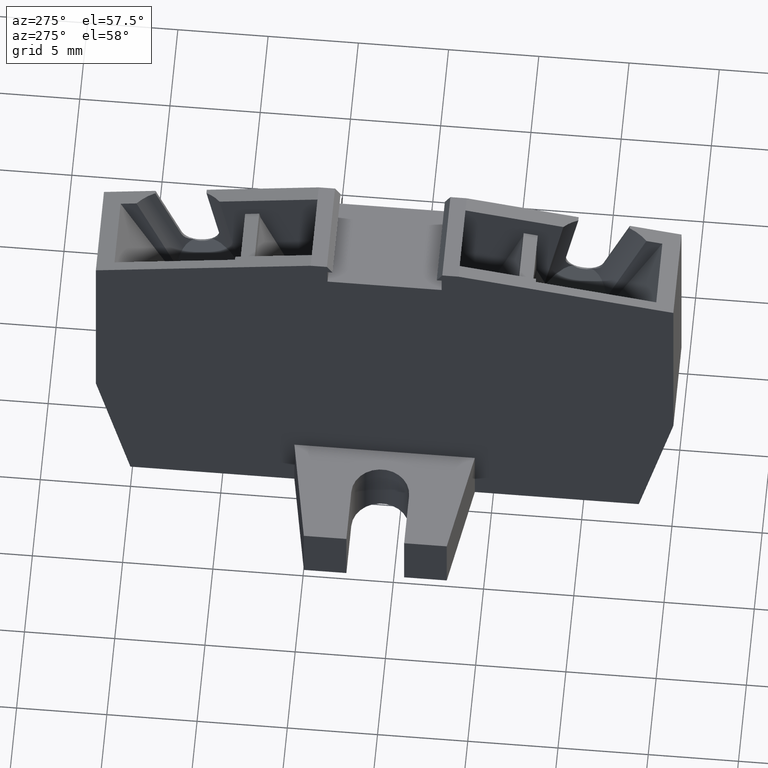
[diagram: clean part render]
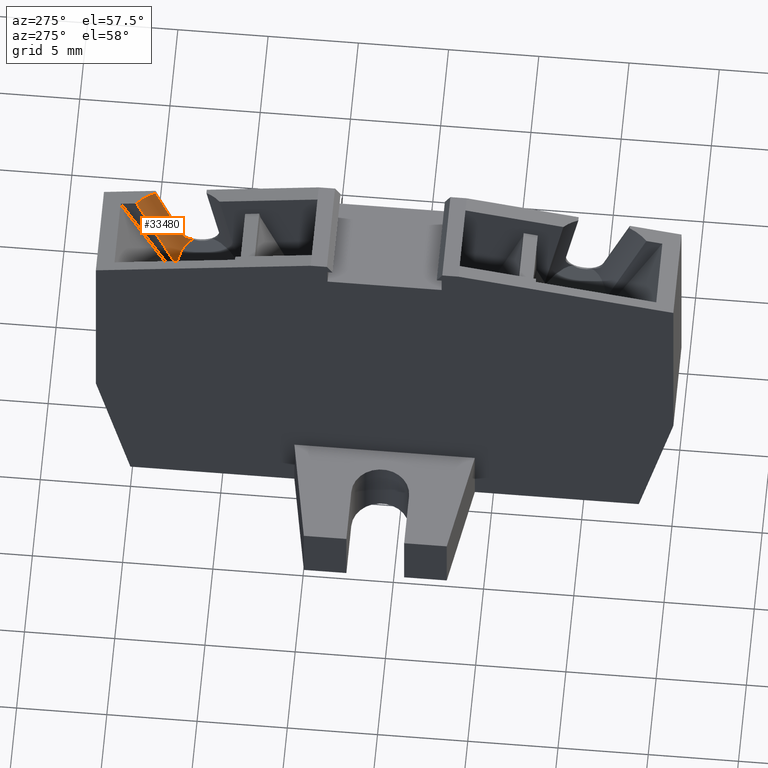
[diagram: same view with one face highlighted and labeled with its STEP entity id]
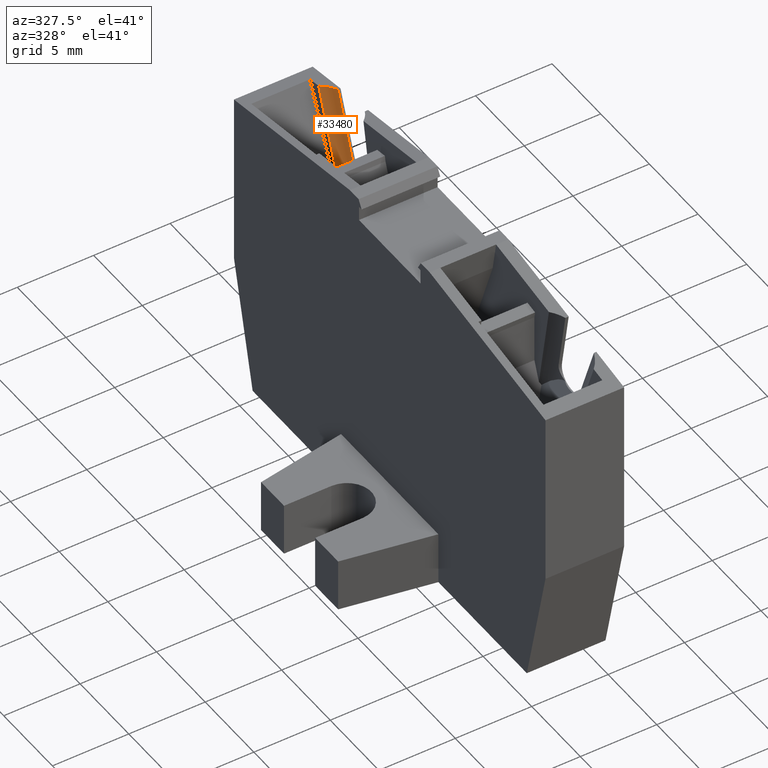
[diagram: same view with one face highlighted and labeled with its STEP entity id]
A machine part, auxiliary view. The second image highlights one B-rep face of the part: STEP entity #33480.
A second angle (auxiliary view) of the same face is appended — the face is thin or edge-on in the first view.
In plain terms, the highlighted cylindrical surface (partial cylindrical patch) has radius 2.6154 mm, axis along (-0, -0.342, -0.9397).
Its self-contained STEP definition (entity closure, byte-faithful):
#8330=CARTESIAN_POINT('',(-4.13156586621165,98.4064081332776,
55.2084248015004));
#8340=VERTEX_POINT('',#8330);
#8370=CARTESIAN_POINT('',(-4.51646609882573,99.2318293458242,
57.665222820032));
#8380=DIRECTION('',(0.906307787036646,0.422618261740707,
3.30958753668607E-15));
#8390=DIRECTION('',(-0.422618261740707,0.906307787036646,
1.41623349009389E-14));
#8400=AXIS2_PLACEMENT_3D('',#8370,#8380,#8390);
#8410=ELLIPSE('',#8400,2.65574601904709,2.61539926958888);
#8420=CARTESIAN_POINT('',(-3.7084462350692,97.4990251560981,55.85));
#8430=VERTEX_POINT('',#8420);
#8440=EDGE_CURVE('',#8430,#8340,#8410,.T.);
#32070=CARTESIAN_POINT('',(-4.48467187323335,98.1591606453739,
55.2084248015004));
#32080=DIRECTION('',(0.819152044288994,0.573576436351043,
6.27255662528043E-15));
#32090=VECTOR('',#32080,1.);
#32100=LINE('',#32070,#32090);
#32110=CARTESIAN_POINT('',(-0.659972119695293,100.83724424419,
55.2084248015004));
#32120=VERTEX_POINT('',#32110);
#32130=EDGE_CURVE('',#8340,#32120,#32100,.T.);
#32380=CARTESIAN_POINT('',(-3.91913923216502,97.3514963312846,55.85));
#32390=DIRECTION('',(0.819152044288994,0.573576436351043,
6.27255662528043E-15));
#32400=VECTOR('',#32390,1.);
#32410=LINE('',#32380,#32400);
#32420=CARTESIAN_POINT('',(1.61500198861707,101.226543731593,55.85));
#32430=VERTEX_POINT('',#32420);
#32440=EDGE_CURVE('',#8430,#32430,#32410,.T.);
#32710=CARTESIAN_POINT('',(-4.99912128441311,98.8938705465199,
57.665222820032));
#32720=DIRECTION('',(0.819152044288995,0.573576436351043,
6.27255662528043E-15));
#32730=DIRECTION('',(0.13587384976028,-0.194047967703513,
-0.971536763679819));
#32740=AXIS2_PLACEMENT_3D('',#32710,#32720,#32730);
#32750=CYLINDRICAL_SURFACE('',#32740,2.61539926958888);
#32760=ORIENTED_EDGE('',*,*,#32130,.F.);
#32770=CARTESIAN_POINT('',(-1.23354855604632,101.656396288479,54.55));
#32780=DIRECTION('',(8.93808895116748E-15,-1.82904517099655E-15,-1.));
#32790=DIRECTION('',(-0.866025403784441,-0.499999999999996,
-6.8260895074978E-15));
#32800=AXIS2_PLACEMENT_3D('',#32770,#32780,#32790);
#32810=CYLINDRICAL_SURFACE('',#32800,1.);
#32820=CARTESIAN_POINT('',(-0.233964050718175,101.627572396948,
55.0968748590199));
#32830=CARTESIAN_POINT('',(-0.23452262879609,101.608201452844,
55.0998644418389));
#32840=CARTESIAN_POINT('',(-0.235644725038571,101.588846324963,
55.1029359415615));
#32850=CARTESIAN_POINT('',(-0.237326554308794,101.569553192802,
55.1060640284477));
#32860=CARTESIAN_POINT('',(-0.239008384584561,101.550260049106,
55.1091921172041));
#32870=CARTESIAN_POINT('',(-0.24124990424783,101.531029322067,
55.1123766882726));
#32880=CARTESIAN_POINT('',(-0.244042305701272,101.511906217773,
55.1155914312032));
#32890=CARTESIAN_POINT('',(-0.24683471418612,101.492783065325,
55.1188061822288));
#32900=CARTESIAN_POINT('',(-0.250177925786895,101.473767932685,
55.1220509996853));
#32910=CARTESIAN_POINT('',(-0.254058488308133,101.454903838986,
55.125299363997));
#32920=CARTESIAN_POINT('',(-0.257939068369092,101.436039660024,
55.1285477429909));
#32930=CARTESIAN_POINT('',(-0.262356888430818,101.417326887761,
55.1317995676893));
#32940=CARTESIAN_POINT('',(-0.267294538237787,101.398805191838,
55.1350288890368));
#32950=CARTESIAN_POINT('',(-0.272228258639665,101.380298235568,
55.1382556404751));
#32960=CARTESIAN_POINT('',(-0.277706249009716,101.361886064854,
55.141476726095));
#32970=CARTESIAN_POINT('',(-0.283729474831309,101.343596491548,
55.1446685884934));
#32980=CARTESIAN_POINT('',(-0.28975224536019,101.325308300743,
55.1478602096204));
#32990=CARTESIAN_POINT('',(-0.296318559060542,101.307148752729,
55.1510215145506));
#33000=CARTESIAN_POINT('',(-0.303419641576864,101.289163116682,
55.1541257089955));
#33010=CARTESIAN_POINT('',(-0.310520702530591,101.271177535249,
55.1572298940144));
#33020=CARTESIAN_POINT('',(-0.318156398694853,101.25336627309,
55.1602768545306));
#33030=CARTESIAN_POINT('',(-0.326312505405804,101.235774429301,
55.1632402605095));
#33040=CARTESIAN_POINT('',(-0.334468604137425,101.218182602722,
55.1662036635893));
#33050=CARTESIAN_POINT('',(-0.343144931497893,101.200810612654,
55.1690833975144));
#33060=CARTESIAN_POINT('',(-0.352322051646875,101.183702044867,
55.1718544918905));
#33070=CARTESIAN_POINT('',(-0.361499182373466,101.166593457361,
55.1746255894607));
#33080=CARTESIAN_POINT('',(-0.371176874408853,101.149748713063,
55.1772879385872));
#33090=CARTESIAN_POINT('',(-0.381331069531525,101.133208601622,
55.1798187822584));
#33100=CARTESIAN_POINT('',(-0.391485300235111,101.116668432224,
55.1823496347978));
#33110=CARTESIAN_POINT('',(-0.402115753635744,101.100433306695,
55.184748885996));
#33120=CARTESIAN_POINT('',(-0.413194752559774,101.084539980387,
55.1869967401052));
#33130=CARTESIAN_POINT('',(-0.424276103104028,101.068643280572,
55.1892450713422));
#33140=CARTESIAN_POINT('',(-0.435795165997167,101.053102568142,
55.1913401213136));
#33150=CARTESIAN_POINT('',(-0.447752665059754,101.037910381034,
55.1932706038426));
#33160=CARTESIAN_POINT('',(-0.45972124471949,101.022704115855,
55.1952028752824));
#33170=CARTESIAN_POINT('',(-0.472176427544032,101.007788645923,
55.1969774891389));
#33180=CARTESIAN_POINT('',(-0.485093957577328,100.993210255732,
55.1985752167272));
#33190=CARTESIAN_POINT('',(-0.49801139904398,100.978631965496,
55.200172933361));
#33200=CARTESIAN_POINT('',(-0.511390781760015,100.964391313202,
55.2015936483081));
#33210=CARTESIAN_POINT('',(-0.525200042449637,100.950533424117,
55.2028217928996));
#33220=CARTESIAN_POINT('',(-0.539009255912226,100.936675582426,
55.2040499332909));
#33230=CARTESIAN_POINT('',(-0.553247837018872,100.923201067268,
55.2050854130955));
#33240=CARTESIAN_POINT('',(-0.56787691313775,100.910151513739,
55.2059172980172));
#33250=CARTESIAN_POINT('',(-0.582505988403661,100.89710196097,
55.2067491828904));
#33260=CARTESIAN_POINT('',(-0.59752496335372,100.884477907168,
55.2073774181009));
#33270=CARTESIAN_POINT('',(-0.612889702287138,100.872315560971,
55.2077963252246));
#33280=CARTESIAN_POINT('',(-0.628254493831823,100.860153173127,
55.2082152337827));
#33290=CARTESIAN_POINT('',(-0.643964397203647,100.848452972148,
55.2084248015004));
#33300=CARTESIAN_POINT('',(-0.659972119695299,100.83724424419,
55.2084248015004));
#33310=B_SPLINE_CURVE_WITH_KNOTS('',3,(#32820,#32830,#32840,#32850,
#32860,#32870,#32880,#32890,#32900,#32910,#32920,#32930,#32940,#32950,
#32960,#32970,#32980,#32990,#33000,#33010,#33020,#33030,#33040,#33050,
#33060,#33070,#33080,#33090,#33100,#33110,#33120,#33130,#33140,#33150,
#33160,#33170,#33180,#33190,#33200,#33210,#33220,#33230,#33240,#33250,
#33260,#33270,#33280,#33290,#33300),.UNSPECIFIED.,.F.,.F.,(4,3,3,3,3,3,3
,3,3,3,3,3,3,3,3,3,4),(0.,0.0588467576894776,0.117668511556097,
0.176360725564564,0.234822979572552,0.293234891538109,0.351895573414584,
0.410704381348288,0.469553509608805,0.528337366517123,0.586958729349356,
0.64534493379676,0.703839898187338,0.762567485752166,0.821412267435654,
0.880254137503529,0.938976092358915),.UNSPECIFIED.);
#33320=SURFACE_CURVE('',#33310,(#32810,#32750),.CURVE_3D.);
#33330=CARTESIAN_POINT('',(-0.233964050725739,101.627572396948,
55.0968748590188));
#33340=VERTEX_POINT('',#33330);
#33350=EDGE_CURVE('',#33340,#32120,#33320,.T.);
#33360=ORIENTED_EDGE('',*,*,#33350,.T.);
#33370=CARTESIAN_POINT('',(3.82674609264602,105.073809415176,
57.6652228200321));
#33380=DIRECTION('',(-0.405313164070281,-0.189000632356998,
0.894427190999912));
#33390=DIRECTION('',(0.713577479916644,0.54615858496601,
0.438768709257779));
#33400=AXIS2_PLACEMENT_3D('',#33370,#33380,#33390);
#33410=ELLIPSE('',#33400,5.93842862956372,2.61539926958888);
#33420=EDGE_CURVE('',#33340,#32430,#33410,.T.);
#33430=ORIENTED_EDGE('',*,*,#33420,.F.);
#33440=ORIENTED_EDGE('',*,*,#32440,.T.);
#33450=ORIENTED_EDGE('',*,*,#8440,.F.);
#33460=EDGE_LOOP('',(#33450,#33440,#33430,#33360,#32760));
#33470=FACE_OUTER_BOUND('',#33460,.T.);
#33480=ADVANCED_FACE('',(#33470),#32750,.F.);